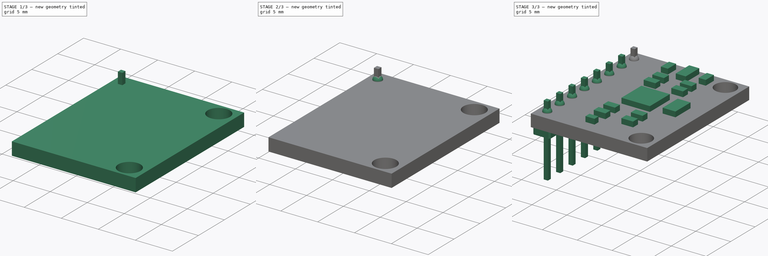
[diagram: build sequence overview — one tinted view per stage of 3, left to right]
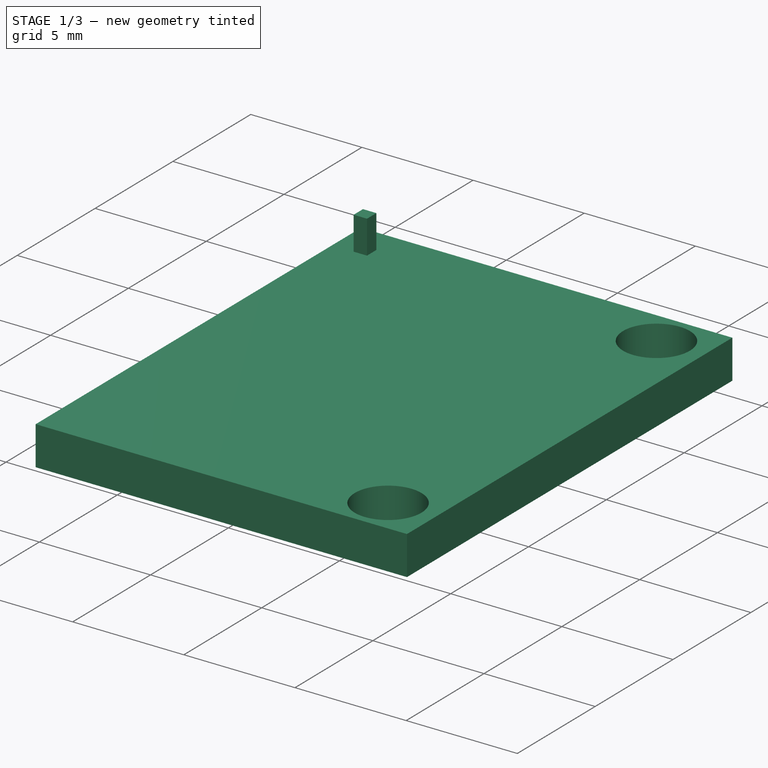
[diagram: stage 1 of 3 — iso view after this stage's code; geometry added in this stage tinted green]
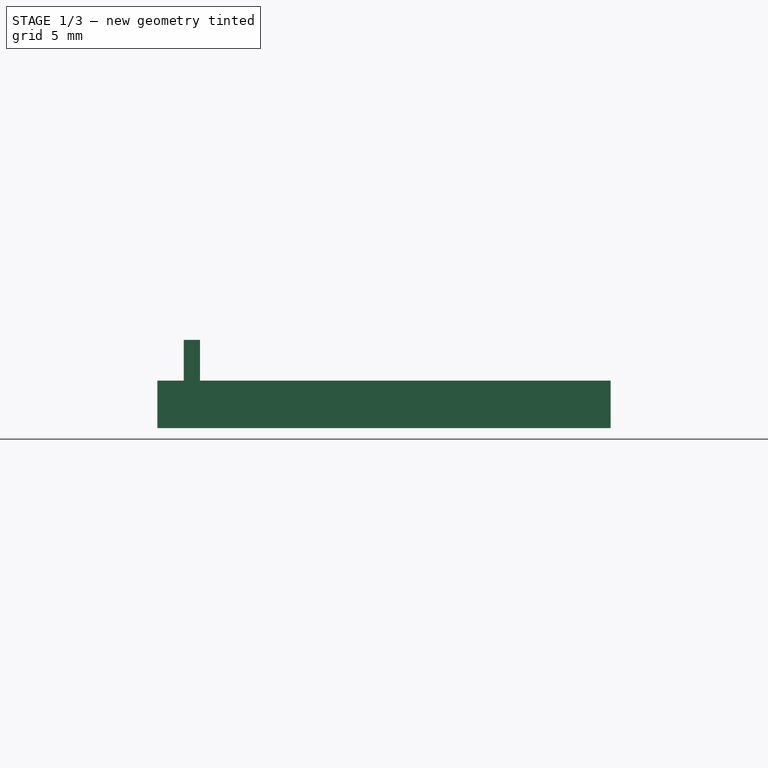
[diagram: stage 1 of 3 — front view after this stage's code; geometry added in this stage tinted green]
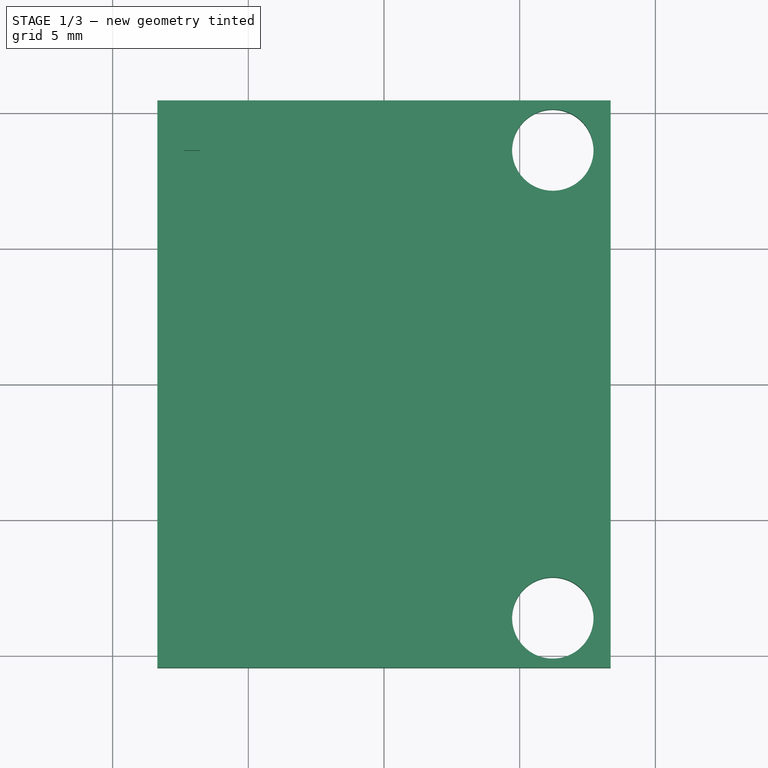
[diagram: stage 1 of 3 — top view after this stage's code; geometry added in this stage tinted green]
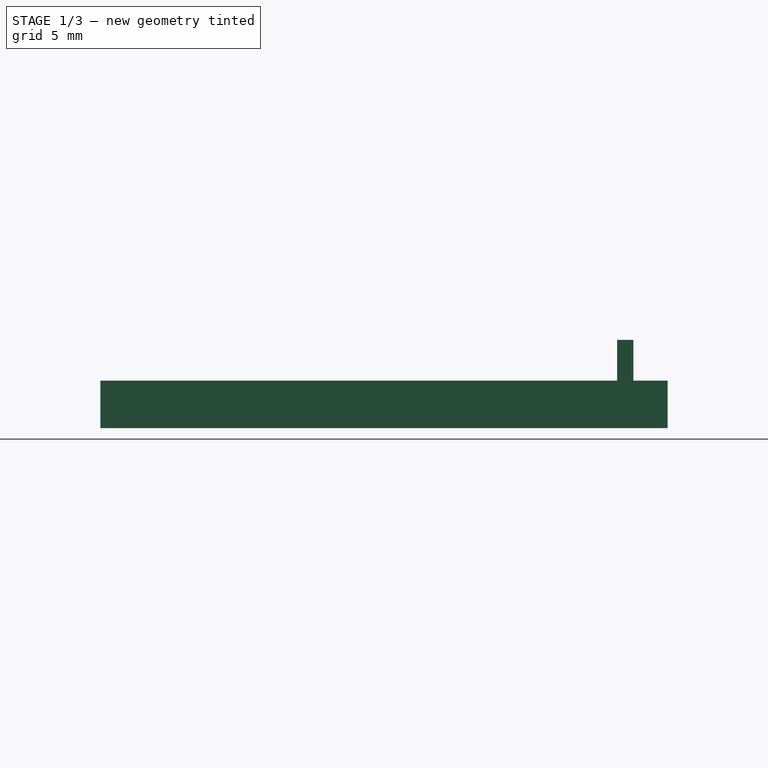
[diagram: stage 1 of 3 — right view after this stage's code; geometry added in this stage tinted green]
FCSTD DOCUMENT  (FreeCAD 1.0R39109 (Git))
Label: accel_gy_mpu
License: All rights reserved
LicenseURL: http://en.wikipedia.org/wiki/All_rights_reserved
objects: Sketcher::SketchObject×8, PartDesign::Pad×5, Image::ImagePlane×1, PartDesign::Pocket×1, PartDesign::Plane×1, PartDesign::Revolution×1, PartDesign::LinearPattern×1, PartDesign::Body×1
note: 41 computed .brp shape members not serialized (recipe doc carries the construction recipe); baked Part::Feature solids carry a one-line shape summary decoded from their .brp

FEATURE [Sketcher::SketchObject] Sketch
  ArcFitTolerance = 1e-06
  AttachmentSupport = -> [XY_Plane]
  FullyConstrained = true
  MakeInternals = false
  MapMode = 5
  sketch-geometry (5):
    g0: LineSegment StartX=-8.35 StartY=10.45 StartZ=0 EndX=-8.35 EndY=-10.45 EndZ=0
    g1: LineSegment StartX=-8.35 StartY=-10.45 StartZ=0 EndX=8.35 EndY=-10.45 EndZ=0
    g2: LineSegment StartX=8.35 StartY=-10.45 StartZ=0 EndX=8.35 EndY=10.45 EndZ=0
    g3: LineSegment StartX=8.35 StartY=10.45 StartZ=0 EndX=-8.35 EndY=10.45 EndZ=0
    g4: GeomPoint [constr] X=0 Y=0 Z=0
  constraints (12):
    c: Coincident(g0,g1)
    c: Coincident(g1,g2)
    c: Coincident(g2,g3)
    c: Coincident(g3,g0)
    c: Vertical(g0)
    c: Vertical(g2)
    c: Horizontal(g1)
    c: Horizontal(g3)
    c: Symmetric(g2,g0,g4)
    c: Coincident(g4,g-1)
    c: DistanceX(g3,g3) = 16.7
    c: DistanceY(g2,g2) = 20.9
FEATURE [PartDesign::Pad] Pad  label="PCBPad"
  Direction = (0,0,1)
  Length = 1.75
  Length2 = 10
  Profile = -> Sketch
  ReferenceAxis = -> Sketch [N_Axis]
  Refine = true
  Suppressed = false
  Type = 0
FEATURE [Image::ImagePlane] mpu6050  label="DrawingReference"
  XSize = 24.9984
  YSize = 24.9984
  expr: XSize = 59.52 * 0.42 mm
  expr: YSize = 59.52 * 0.42 mm
FEATURE [Sketcher::SketchObject] Sketch001
  ArcFitTolerance = 1e-06
  AttachmentSupport = -> [Pad]
  FullyConstrained = true
  MakeInternals = false
  MapMode = 5
  Placement = pos=(0,0,1.75) rot=(0,0,1;0rad)
  sketch-geometry (2):
    g0: Circle CenterX=6.22 CenterY=8.62 CenterZ=0 NormalX=0 NormalY=0 NormalZ=1 AngleXU=0 Radius=1.5
    g1: Circle CenterX=6.22 CenterY=-8.62 CenterZ=0 NormalX=0 NormalY=0 NormalZ=1 AngleXU=0 Radius=1.5
  constraints (5):
    c: Equal(g1,g0)
    c: Radius(g1) = 1.5
    c: Symmetric(g1,g0,g-1)
    c: DistanceY(g1) = -8.62
    c: DistanceX(g-1,g1) = 6.22
FEATURE [PartDesign::Pocket] Pocket  label="ScrewPocket"
  BaseFeature = -> Pad
  Direction = (0,0,-1)
  Length = 5
  Length2 = 5
  Profile = -> Sketch001
  ReferenceAxis = -> Sketch001 [N_Axis]
  Refine = true
  Suppressed = false
  Type = 2
FEATURE [Sketcher::SketchObject] Sketch002
  ArcFitTolerance = 1e-06
  AttachmentSupport = -> [Pocket]
  ExternalGeometry = -> [Pocket]
  FullyConstrained = true
  MakeInternals = false
  MapMode = 5
  Placement = pos=(0,0,1.75) rot=(0,0,1;0rad)
  sketch-geometry (19):
    g0: LineSegment [constr] StartX=-8.35 StartY=10.16 StartZ=0 EndX=-8.35 EndY=7.62 EndZ=0
    g1: LineSegment [constr] StartX=-8.35 StartY=7.62 StartZ=0 EndX=-5.81 EndY=7.62 EndZ=0
    g2: LineSegment [constr] StartX=-5.81 StartY=7.62 StartZ=0 EndX=-5.81 EndY=10.16 EndZ=0
    g3: LineSegment [constr] StartX=-5.81 StartY=10.16 StartZ=0 EndX=-8.35 EndY=10.16 EndZ=0
    g4: GeomPoint [constr] X=-7.08 Y=8.89 Z=0
    g5: LineSegment [constr] StartX=-5.81 StartY=7.62 StartZ=0 EndX=-5.81 EndY=5.08 EndZ=0
    g6: LineSegment [constr] StartX=-5.81 StartY=5.08 StartZ=0 EndX=-5.81 EndY=2.54 EndZ=0
    g7: LineSegment [constr] StartX=-5.81 StartY=2.54 StartZ=0 EndX=-5.81 EndY=0 EndZ=0
    g8: LineSegment [constr] StartX=-5.81 StartY=0 StartZ=0 EndX=-5.81 EndY=-2.54 EndZ=0
    g9: LineSegment [constr] StartX=-5.81 StartY=-2.54 StartZ=0 EndX=-5.81 EndY=-5.08 EndZ=0
    g10: LineSegment [constr] StartX=-5.81 StartY=-5.08 StartZ=0 EndX=-5.81 EndY=-7.62 EndZ=0
    g11: LineSegment [constr] StartX=-5.81 StartY=-7.62 StartZ=0 EndX=-5.81 EndY=-10.16 EndZ=0
    g12: LineSegment [constr] StartX=-5.81 StartY=10.16 StartZ=0 EndX=-5.81 EndY=10.45 EndZ=0
    g13: LineSegment [constr] StartX=-5.81 StartY=-10.16 StartZ=0 EndX=-5.81 EndY=-10.45 EndZ=0
    g14: LineSegment StartX=-7.38 StartY=9.19 StartZ=0 EndX=-7.38 EndY=8.59 EndZ=0
    g15: LineSegment StartX=-7.38 StartY=8.59 StartZ=0 EndX=-6.78 EndY=8.59 EndZ=0
    g16: LineSegment StartX=-6.78 StartY=8.59 StartZ=0 EndX=-6.78 EndY=9.19 EndZ=0
    g17: LineSegment StartX=-6.78 StartY=9.19 StartZ=0 EndX=-7.38 EndY=9.19 EndZ=0
    g18: GeomPoint [constr] X=-7.08 Y=8.89 Z=0
  constraints (52):
    c: Coincident(g0,g1)
    c: Coincident(g1,g2)
    c: Coincident(g2,g3)
    c: Coincident(g3,g0)
    c: Vertical(g0)
    c: Vertical(g2)
    c: Horizontal(g1)
    c: Horizontal(g3)
    c: Symmetric(g2,g0,g4)
    c: Equal(g2,g3)
    c: PointOnObject(g0,g-3)
    c: Coincident(g5,g1)
    c: Vertical(g5)
    c: Vertical(g6)
    c: Coincident(g6,g7)
    c: Coincident(g7,g8)
    c: Vertical(g8)
    c: Coincident(g8,g9)
    c: Coincident(g9,g10)
    c: Coincident(g10,g11)
    c: Vertical(g11)
    c: Vertical(g10)
    c: Vertical(g9)
    c: Vertical(g7)
    c: Equal(g6,g5)
    c: Equal(g7,g6)
    c: Coincident(g6,g5)
    c: Equal(g7,g8)
    c: Equal(g9,g10)
    c: Equal(g11,g10)
    c: Equal(g5,g2)
    c: Equal(g8,g9)
    c: Coincident(g12,g2)
    c: PointOnObject(g12,g-4)
    c: Coincident(g13,g11)
    c: Horizontal(g13,g-3)
    c: Vertical(g13)
    c: Equal(g13,g12)
    c: Vertical(g12)
    c: Coincident(g14,g15)
    c: Coincident(g15,g16)
    c: Coincident(g16,g17)
    c: Coincident(g17,g14)
    c: Vertical(g14)
    c: Vertical(g16)
    c: Horizontal(g15)
    c: Horizontal(g17)
    c: Symmetric(g16,g14,g18)
    c: Coincident(g18,g4)
    c: Equal(g16,g17)
    c: DistanceY(g16,g16) = 0.6
    c: DistanceY(g2,g2) = 2.54
FEATURE [PartDesign::Pad] Pad001  label="ExcedentConnectorPad"
  BaseFeature = -> Pocket
  Direction = (0,0,1)
  Length = 1.5
  Length2 = 10
  Profile = -> Sketch002
  ReferenceAxis = -> Sketch002 [N_Axis]
  Refine = true
  Suppressed = false
  Type = 0
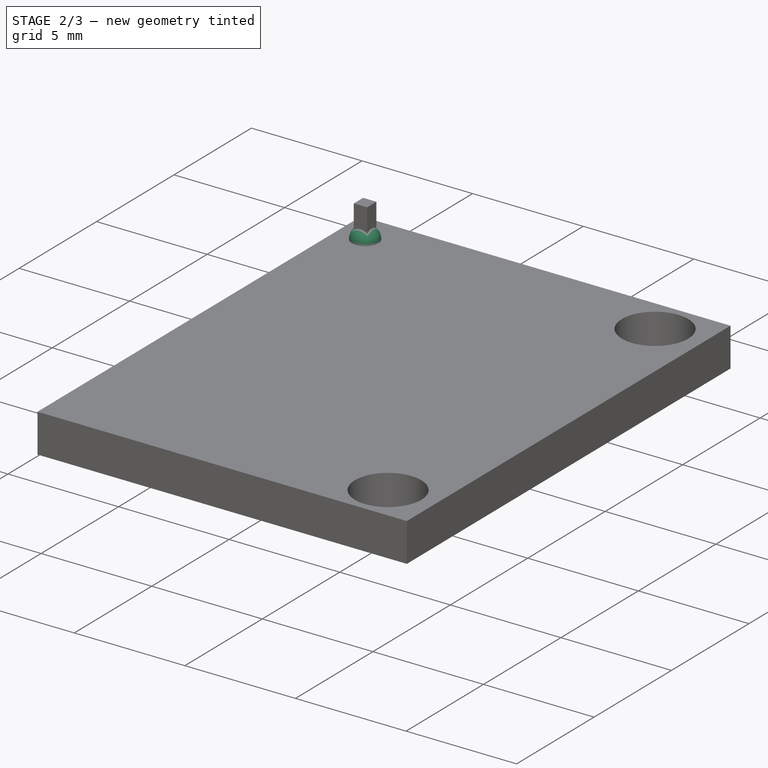
[diagram: stage 2 of 3 — iso view after this stage's code; geometry added in this stage tinted green]
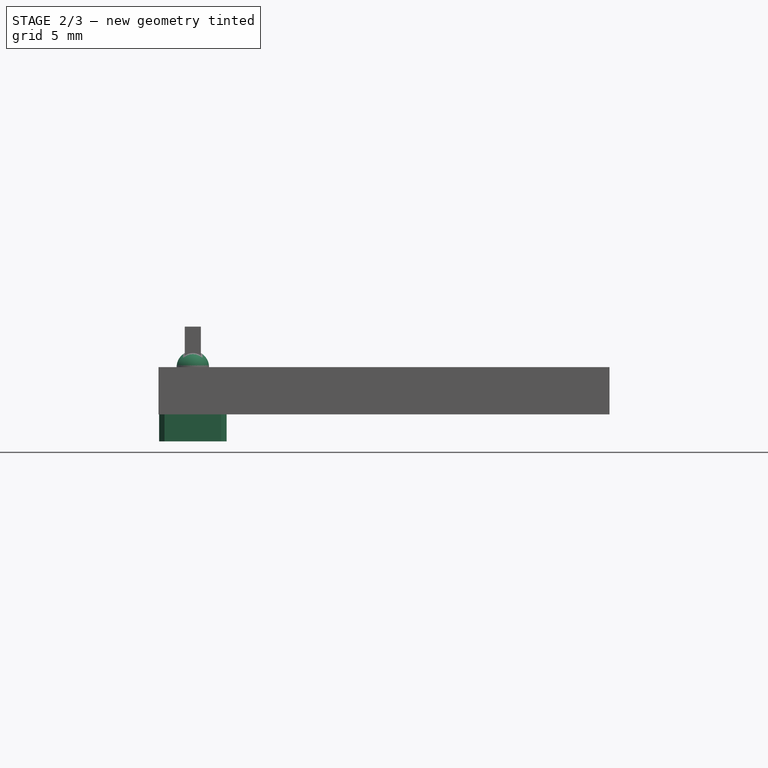
[diagram: stage 2 of 3 — front view after this stage's code; geometry added in this stage tinted green]
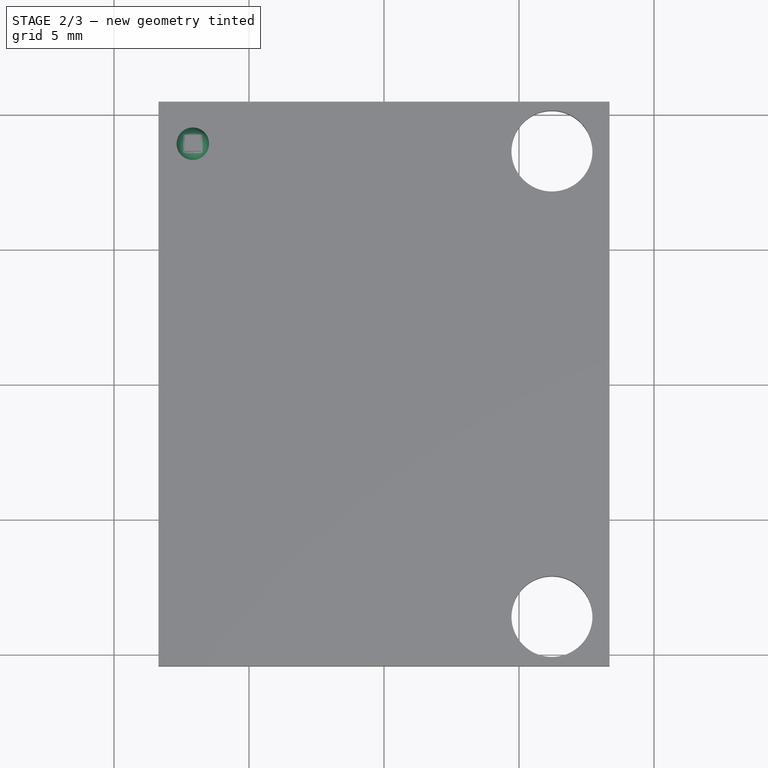
[diagram: stage 2 of 3 — top view after this stage's code; geometry added in this stage tinted green]
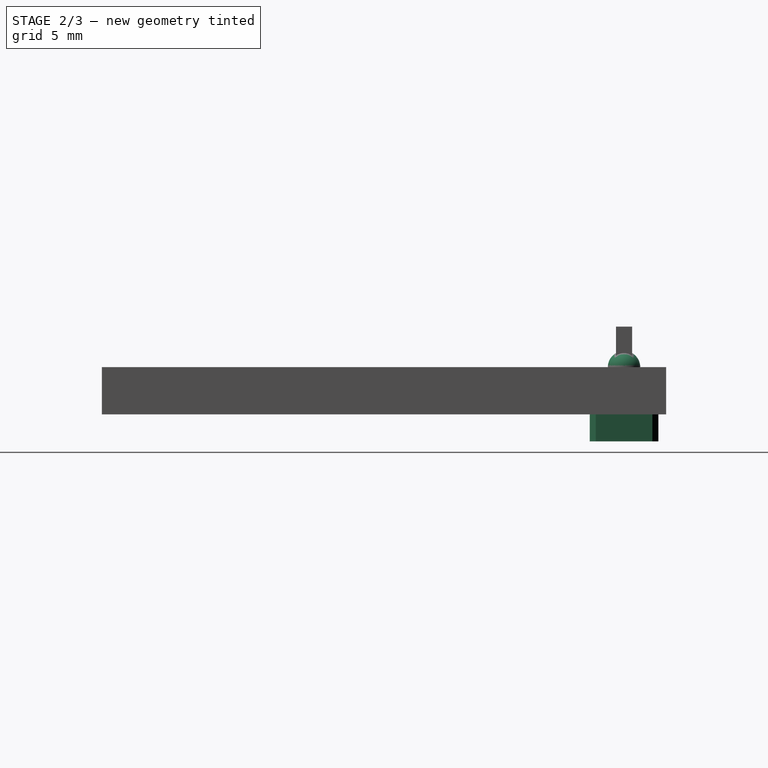
[diagram: stage 2 of 3 — right view after this stage's code; geometry added in this stage tinted green]
FEATURE [PartDesign::Plane] DatumPlane  label="SolderingReference"
  AttachmentOffset = pos=(0,0,-0.3) rot=(0,0,1;0rad)
  AttachmentSupport = -> [Pad001]
  Length = 60
  MapMode = 5
  Placement = pos=(0,8.89,-1e-16) rot=(1,0,0;1.5708rad)
  ResizeMode = 0
  Width = 60
FEATURE [Sketcher::SketchObject] Sketch003
  ArcFitTolerance = 1e-06
  AttachmentSupport = -> [DatumPlane]
  ExternalGeometry = -> [Pad001]
  FullyConstrained = true
  MakeInternals = false
  MapMode = 5
  Placement = pos=(0,8.89,-1e-16) rot=(1,0,0;1.5708rad)
  sketch-geometry (5):
    g0: GeomPoint X=-7.08 Y=3.25 Z=0
    g1: LineSegment [constr] StartX=-7.08 StartY=3.25 StartZ=0 EndX=-7.08 EndY=1.75 EndZ=0
    g2: ArcOfCircle CenterX=-7.08 CenterY=1.75 CenterZ=0 NormalX=0 NormalY=0 NormalZ=1 AngleXU=0 Radius=0.6 StartAngle=2e-16 EndAngle=1.5708
    g3: LineSegment StartX=-7.08 StartY=2.35 StartZ=0 EndX=-7.08 EndY=1.75 EndZ=0
    g4: LineSegment StartX=-6.48 StartY=1.75 StartZ=0 EndX=-7.08 EndY=1.75 EndZ=0
  constraints (12):
    c: Symmetric(g-3,g-3,g0)
    c: Coincident(g1,g0)
    c: Vertical(g1)
    c: Horizontal(g1,g-4)
    c: Coincident(g2,g1)
    c: PointOnObject(g2,g1)
    c: Coincident(g3,g2)
    c: Coincident(g3,g1)
    c: Coincident(g4,g2)
    c: Coincident(g4,g1)
    c: Horizontal(g4)
    c: DistanceX(g4,g4) = 0.6
FEATURE [PartDesign::Revolution] Revolution  label="SolderingRevolution"
  Angle = 360
  Angle2 = 60
  Axis = (0,-3e-16,-1.5)
  Base = (-7.08,8.89,3.25)
  BaseFeature = -> Pad001
  Profile = -> Sketch003
  ReferenceAxis = -> Sketch003 [Axis]
  Refine = true
  Suppressed = false
  Type = 0
FEATURE [Sketcher::SketchObject] Sketch004
  ArcFitTolerance = 1e-06
  AttachmentSupport = -> [Revolution]
  ExternalGeometry = -> [Revolution]
  FullyConstrained = true
  MakeInternals = false
  MapMode = 5
  Placement = pos=(0,0,0) rot=(1,0,0;3.14159rad)
  sketch-geometry (14):
    g0: LineSegment StartX=-8.33 StartY=-7.84 StartZ=0 EndX=-8.33 EndY=-9.94 EndZ=0
    g1: LineSegment StartX=-8.33 StartY=-9.94 StartZ=0 EndX=-8.13 EndY=-10.16 EndZ=0
    g2: LineSegment StartX=-8.13 StartY=-10.16 StartZ=0 EndX=-6.03 EndY=-10.16 EndZ=0
    g3: LineSegment StartX=-6.03 StartY=-10.16 StartZ=0 EndX=-5.83 EndY=-9.94 EndZ=0
    g4: LineSegment StartX=-5.83 StartY=-9.94 StartZ=0 EndX=-5.83 EndY=-7.84 EndZ=0
    g5: LineSegment StartX=-5.83 StartY=-7.84 StartZ=0 EndX=-6.03 EndY=-7.62 EndZ=0
    g6: LineSegment StartX=-6.03 StartY=-7.62 StartZ=0 EndX=-8.13 EndY=-7.62 EndZ=0
    g7: LineSegment StartX=-8.13 StartY=-7.62 StartZ=0 EndX=-8.33 EndY=-7.84 EndZ=0
    g8: GeomPoint X=-5.83 Y=-8.89 Z=0
    g9: GeomPoint X=-7.08 Y=-7.62 Z=0
    g10: GeomPoint X=-7.08 Y=-10.16 Z=0
    g11: GeomPoint X=-8.33 Y=-8.89 Z=0
    g12: GeomPoint X=-7.08 Y=-8.59 Z=0
    g13: GeomPoint X=-6.78 Y=-8.89 Z=0
  constraints (30):
    c: Vertical(g0)
    c: Coincident(g0,g1)
    c: Coincident(g1,g2)
    c: Horizontal(g2)
    c: Coincident(g2,g3)
    c: Coincident(g3,g4)
    c: Coincident(g4,g5)
    c: Coincident(g5,g6)
    c: Horizontal(g6)
    c: Coincident(g6,g7)
    c: Coincident(g7,g0)
    c: Symmetric(g4,g4,g8)
    c: Symmetric(g6,g6,g9)
    c: Vertical(g4)
    c: Symmetric(g2,g2,g10)
    c: Symmetric(g0,g0,g11)
    c: Horizontal(g11,g8)
    c: Vertical(g10,g9)
    c: Parallel(g5,g1)
    c: Parallel(g7,g3)
    c: Equal(g1,g3)
    c: Equal(g3,g5)
    c: Symmetric(g-3,g-3,g12)
    c: Symmetric(g-4,g-4,g13)
    c: Horizontal(g8,g13)
    c: Vertical(g9,g12)
    c: DistanceY(g2,g5) = 2.54
    c: DistanceX(g0,g4) = 2.5
    c: Equal(g4,g6)
    c: DistanceX(g5,g4) = 0.2
FEATURE [PartDesign::Pad] Pad002  label="ConnectorBasePad"
  BaseFeature = -> Revolution
  Direction = (0,0,-1)
  Length = 1
  Length2 = 10
  Profile = -> Sketch004
  ReferenceAxis = -> Sketch004 [N_Axis]
  Refine = true
  Suppressed = false
  Type = 0
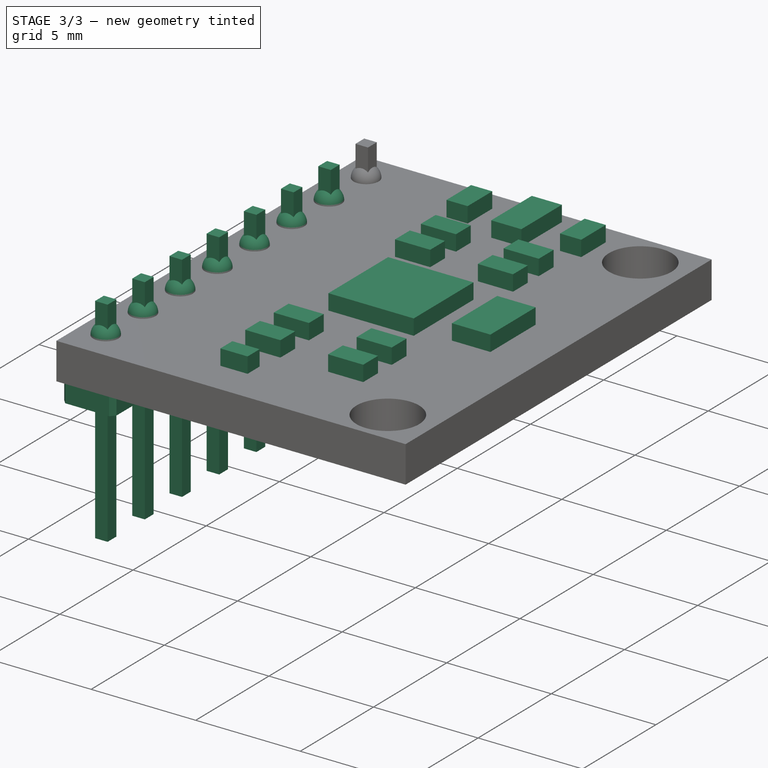
[diagram: stage 3 of 3 — iso view after this stage's code; geometry added in this stage tinted green]
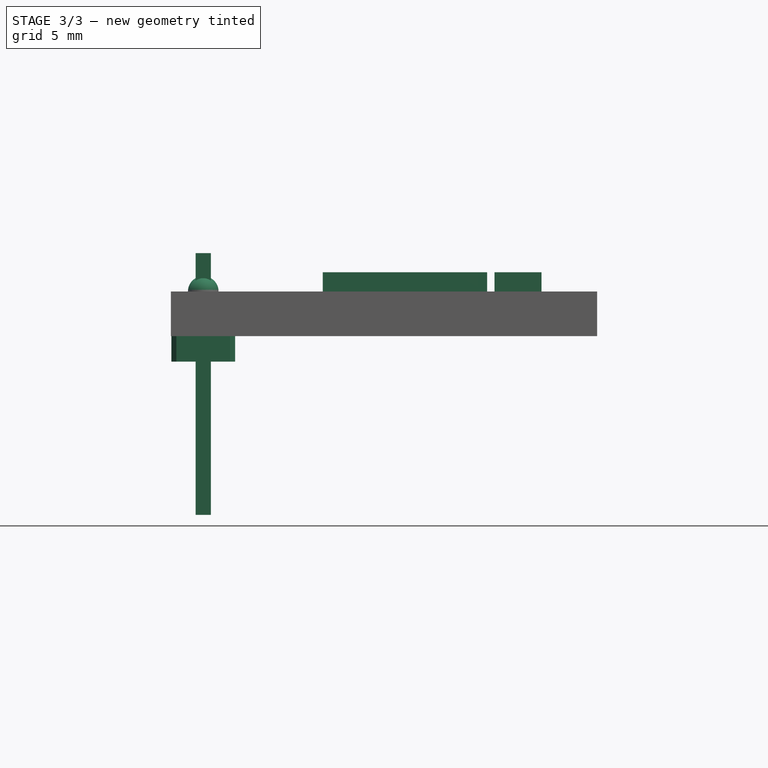
[diagram: stage 3 of 3 — front view after this stage's code; geometry added in this stage tinted green]
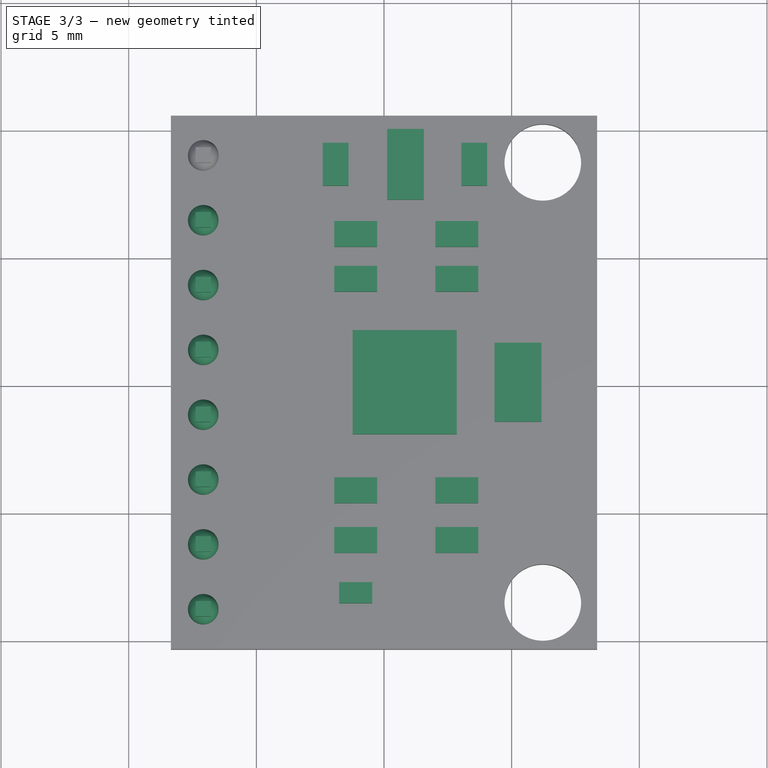
[diagram: stage 3 of 3 — top view after this stage's code; geometry added in this stage tinted green]
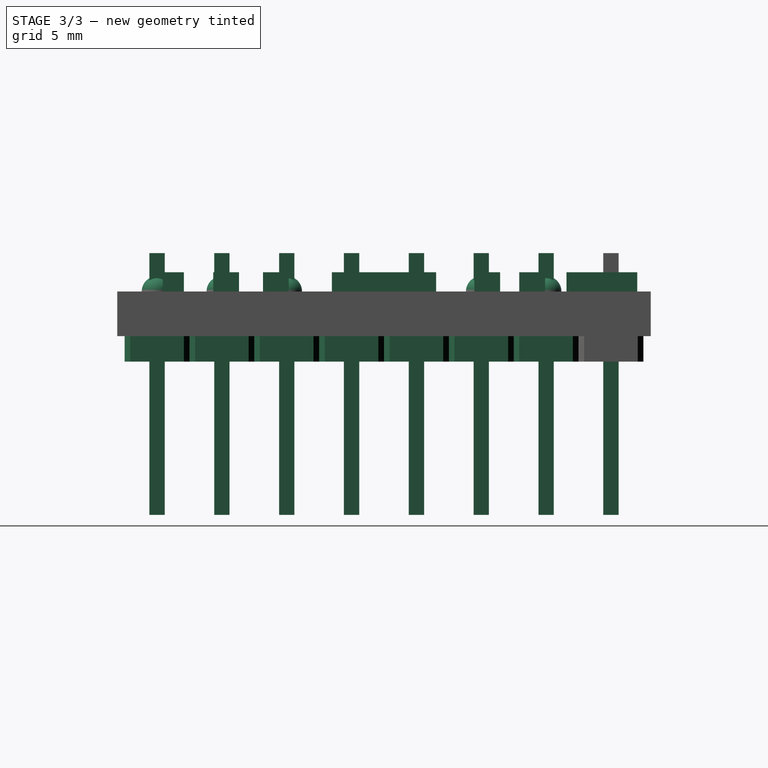
[diagram: stage 3 of 3 — right view after this stage's code; geometry added in this stage tinted green]
FEATURE [Sketcher::SketchObject] Sketch005
  ArcFitTolerance = 1e-06
  AttachmentSupport = -> [Pad002]
  ExternalGeometry = -> [Pad002]
  FullyConstrained = true
  MakeInternals = false
  MapMode = 5
  Placement = pos=(0,0,-1) rot=(1,0,0;3.14159rad)
  sketch-geometry (7):
    g0: GeomPoint X=-7.08 Y=-7.62 Z=0
    g1: GeomPoint X=-8.33 Y=-8.89 Z=0
    g2: LineSegment StartX=-7.38 StartY=-8.59 StartZ=0 EndX=-7.38 EndY=-9.19 EndZ=0
    g3: LineSegment StartX=-7.38 StartY=-9.19 StartZ=0 EndX=-6.78 EndY=-9.19 EndZ=0
    g4: LineSegment StartX=-6.78 StartY=-9.19 StartZ=0 EndX=-6.78 EndY=-8.59 EndZ=0
    g5: LineSegment StartX=-6.78 StartY=-8.59 StartZ=0 EndX=-7.38 EndY=-8.59 EndZ=0
    g6: GeomPoint [constr] X=-7.08 Y=-8.89 Z=0
  constraints (15):
    c: Symmetric(g-4,g-4,g0)
    c: Symmetric(g-3,g-3,g1)
    c: Coincident(g2,g3)
    c: Coincident(g3,g4)
    c: Coincident(g4,g5)
    c: Coincident(g5,g2)
    c: Vertical(g2)
    c: Vertical(g4)
    c: Horizontal(g3)
    c: Horizontal(g5)
    c: Symmetric(g4,g2,g6)
    c: Equal(g4,g5)
    c: DistanceY(g4,g4) = 0.6
    c: Horizontal(g6,g1)
    c: Vertical(g6,g0)
FEATURE [PartDesign::Pad] Pad003  label="ConnectorPad"
  BaseFeature = -> Pad002
  Direction = (0,0,-1)
  Length = 6
  Length2 = 10
  Profile = -> Sketch005
  ReferenceAxis = -> Sketch005 [N_Axis]
  Refine = true
  Suppressed = false
  Type = 0
FEATURE [PartDesign::LinearPattern] LinearPattern  label="ConnectorsPattern"
  BaseFeature = -> Pad003
  Direction = -> Sketch005 [V_Axis]
  Length = 17.78
  Mode = 1
  Occurrences = 8
  Offset = 2.54
  Originals = -> [Pad003,Pad002,Revolution,Pad001]
  Refine = true
  Suppressed = false
  TransformMode = 0
FEATURE [Sketcher::SketchObject] Sketch006
  ArcFitTolerance = 1e-06
  AttachmentSupport = -> [LinearPattern]
  FullyConstrained = true
  MakeInternals = false
  MapMode = 5
  Placement = pos=(0,0,1.75) rot=(0,0,1;0rad)
  sketch-geometry (62):
    g0: LineSegment StartX=-1.23 StartY=2.04 StartZ=0 EndX=-1.23 EndY=-2.04 EndZ=0
    g1: LineSegment StartX=-1.23 StartY=-2.04 StartZ=0 EndX=2.85 EndY=-2.04 EndZ=0
    g2: LineSegment StartX=2.85 StartY=-2.04 StartZ=0 EndX=2.85 EndY=2.04 EndZ=0
    g3: LineSegment StartX=2.85 StartY=2.04 StartZ=0 EndX=-1.23 EndY=2.04 EndZ=0
    g4: LineSegment StartX=4.33 StartY=1.545 StartZ=0 EndX=4.33 EndY=-1.545 EndZ=0
    g5: LineSegment StartX=4.33 StartY=-1.545 StartZ=0 EndX=6.17 EndY=-1.545 EndZ=0
    g6: LineSegment StartX=6.17 StartY=-1.545 StartZ=0 EndX=6.17 EndY=1.545 EndZ=0
    g7: LineSegment StartX=6.17 StartY=1.545 StartZ=0 EndX=4.33 EndY=1.545 EndZ=0
    g8: LineSegment StartX=-1.95 StartY=-3.73 StartZ=0 EndX=-1.95 EndY=-4.74 EndZ=0
    g9: LineSegment StartX=-1.95 StartY=-4.74 StartZ=0 EndX=-0.27 EndY=-4.74 EndZ=0
    g10: LineSegment StartX=-0.27 StartY=-4.74 StartZ=0 EndX=-0.27 EndY=-3.73 EndZ=0
    g11: LineSegment StartX=-0.27 StartY=-3.73 StartZ=0 EndX=-1.95 EndY=-3.73 EndZ=0
    g12: LineSegment StartX=2.01 StartY=-3.73 StartZ=0 EndX=2.01 EndY=-4.74 EndZ=0
    g13: LineSegment StartX=2.01 StartY=-4.74 StartZ=0 EndX=3.69 EndY=-4.74 EndZ=0
    g14: LineSegment StartX=3.69 StartY=-4.74 StartZ=0 EndX=3.69 EndY=-3.73 EndZ=0
    g15: LineSegment StartX=3.69 StartY=-3.73 StartZ=0 EndX=2.01 EndY=-3.73 EndZ=0
    g16: LineSegment StartX=-1.95 StartY=-5.68 StartZ=0 EndX=-1.95 EndY=-6.69 EndZ=0
    g17: LineSegment StartX=-1.95 StartY=-6.69 StartZ=0 EndX=-0.27 EndY=-6.69 EndZ=0
    g18: LineSegment StartX=-0.27 StartY=-6.69 StartZ=0 EndX=-0.27 EndY=-5.68 EndZ=0
    g19: LineSegment StartX=-0.27 StartY=-5.68 StartZ=0 EndX=-1.95 EndY=-5.68 EndZ=0
    g20: LineSegment StartX=2.01 StartY=-5.68 StartZ=0 EndX=2.01 EndY=-6.69 EndZ=0
    g21: LineSegment StartX=2.01 StartY=-6.69 StartZ=0 EndX=3.69 EndY=-6.69 EndZ=0
    g22: LineSegment StartX=3.69 StartY=-6.69 StartZ=0 EndX=3.69 EndY=-5.68 EndZ=0
    g23: LineSegment StartX=3.69 StartY=-5.68 StartZ=0 EndX=2.01 EndY=-5.68 EndZ=0
    g24: LineSegment StartX=-1.76 StartY=-7.84 StartZ=0 EndX=-1.76 EndY=-8.66 EndZ=0
    g25: LineSegment StartX=-1.76 StartY=-8.66 StartZ=0 EndX=-0.46 EndY=-8.66 EndZ=0
    g26: LineSegment StartX=-0.46 StartY=-8.66 StartZ=0 EndX=-0.46 EndY=-7.84 EndZ=0
    g27: LineSegment StartX=-0.46 StartY=-7.84 StartZ=0 EndX=-1.76 EndY=-7.84 EndZ=0
    g28: LineSegment StartX=-1.95 StartY=6.31 StartZ=0 EndX=-1.95 EndY=5.3 EndZ=0
    g29: LineSegment StartX=-1.95 StartY=5.3 StartZ=0 EndX=-0.27 EndY=5.3 EndZ=0
    g30: LineSegment StartX=-0.27 StartY=5.3 StartZ=0 EndX=-0.27 EndY=6.31 EndZ=0
    g31: LineSegment StartX=-0.27 StartY=6.31 StartZ=0 EndX=-1.95 EndY=6.31 EndZ=0
    g32: LineSegment StartX=-1.95 StartY=4.55 StartZ=0 EndX=-1.95 EndY=3.54 EndZ=0
    g33: LineSegment StartX=-1.95 StartY=3.54 StartZ=0 EndX=-0.27 EndY=3.54 EndZ=0
    g34: LineSegment StartX=-0.27 StartY=3.54 StartZ=0 EndX=-0.27 EndY=4.55 EndZ=0
    g35: LineSegment StartX=-0.27 StartY=4.55 StartZ=0 EndX=-1.95 EndY=4.55 EndZ=0
    g36: LineSegment StartX=2.01 StartY=4.55 StartZ=0 EndX=2.01 EndY=3.54 EndZ=0
    g37: LineSegment StartX=2.01 StartY=3.54 StartZ=0 EndX=3.69 EndY=3.54 EndZ=0
    g38: LineSegment StartX=3.69 StartY=3.54 StartZ=0 EndX=3.69 EndY=4.55 EndZ=0
    g39: LineSegment StartX=3.69 StartY=4.55 StartZ=0 EndX=2.01 EndY=4.55 EndZ=0
    g40: LineSegment StartX=2.01 StartY=6.31 StartZ=0 EndX=2.01 EndY=5.3 EndZ=0
    g41: LineSegment StartX=2.01 StartY=5.3 StartZ=0 EndX=3.69 EndY=5.3 EndZ=0
    g42: LineSegment StartX=3.69 StartY=5.3 StartZ=0 EndX=3.69 EndY=6.31 EndZ=0
    g43: LineSegment StartX=3.69 StartY=6.31 StartZ=0 EndX=2.01 EndY=6.31 EndZ=0
    g44: LineSegment StartX=-2.4 StartY=9.375 StartZ=0 EndX=-2.4 EndY=7.695 EndZ=0
    g45: LineSegment StartX=-2.4 StartY=7.695 StartZ=0 EndX=-1.39 EndY=7.695 EndZ=0
    g46: LineSegment StartX=-1.39 StartY=7.695 StartZ=0 EndX=-1.39 EndY=9.375 EndZ=0
    g47: LineSegment StartX=-1.39 StartY=9.375 StartZ=0 EndX=-2.4 EndY=9.375 EndZ=0
    g48: LineSegment StartX=3.03 StartY=9.375 StartZ=0 EndX=3.03 EndY=7.695 EndZ=0
    g49: LineSegment StartX=3.03 StartY=7.695 StartZ=0 EndX=4.04 EndY=7.695 EndZ=0
    g50: LineSegment StartX=4.04 StartY=7.695 StartZ=0 EndX=4.04 EndY=9.375 EndZ=0
    g51: LineSegment StartX=4.04 StartY=9.375 StartZ=0 EndX=3.03 EndY=9.375 EndZ=0
    g52: LineSegment StartX=0.12 StartY=9.92 StartZ=0 EndX=0.12 EndY=7.15 EndZ=0
    g53: LineSegment StartX=0.12 StartY=7.15 StartZ=0 EndX=1.56 EndY=7.15 EndZ=0
    g54: LineSegment StartX=1.56 StartY=7.15 StartZ=0 EndX=1.56 EndY=9.92 EndZ=0
    g55: LineSegment StartX=1.56 StartY=9.92 StartZ=0 EndX=0.12 EndY=9.92 EndZ=0
    g56: GeomPoint X=0.12 Y=8.535 Z=0
    g57: GeomPoint X=-1.39 Y=8.535 Z=0
    g58: GeomPoint X=3.03 Y=8.535 Z=0
    g59: GeomPoint X=2.85 Y=3.54 Z=0
    g60: GeomPoint X=-1.11 Y=-7.84 Z=0
    g61: GeomPoint X=-1.11 Y=-6.69 Z=0
  constraints (172):
    c: Coincident(g0,g1)
    c: Coincident(g1,g2)
    c: Coincident(g2,g3)
    c: Coincident(g3,g0)
    c: Vertical(g0)
    c: Horizontal(g1)
    c: Horizontal(g3)
    c: Coincident(g4,g5)
    c: Coincident(g5,g6)
    c: Coincident(g6,g7)
    c: Coincident(g7,g4)
    c: Vertical(g6)
    c: Horizontal(g5)
    c: Horizontal(g7)
    c: Coincident(g8,g9)
    c: Coincident(g9,g10)
    c: Coincident(g10,g11)
    c: Coincident(g11,g8)
    c: Vertical(g8)
    c: Vertical(g10)
    c: Horizontal(g9)
    c: Horizontal(g11)
    c: Coincident(g12,g13)
    c: Coincident(g13,g14)
    c: Coincident(g14,g15)
    c: Coincident(g15,g12)
    c: Vertical(g12)
    c: Vertical(g14)
    c: Horizontal(g13)
    c: Horizontal(g15)
    c: Coincident(g16,g17)
    c: Coincident(g17,g18)
    c: Coincident(g18,g19)
    c: Coincident(g19,g16)
    c: Vertical(g16)
    c: Vertical(g18)
    c: Horizontal(g17)
    c: Horizontal(g19)
    c: Coincident(g20,g21)
    c: Coincident(g21,g22)
    c: Coincident(g22,g23)
    c: Coincident(g23,g20)
    c: Vertical(g20)
    c: Vertical(g22)
    c: Horizontal(g21)
    c: Horizontal(g23)
    c: Coincident(g24,g25)
    c: Coincident(g25,g26)
    c: Coincident(g26,g27)
    c: Coincident(g27,g24)
    c: Vertical(g24)
    c: Vertical(g26)
    c: Horizontal(g25)
    c: Horizontal(g27)
    c: Coincident(g28,g29)
    c: Coincident(g29,g30)
    c: Coincident(g30,g31)
    c: Coincident(g31,g28)
    c: Vertical(g28)
    c: Vertical(g30)
    c: Horizontal(g29)
    c: Horizontal(g31)
    c: Coincident(g32,g33)
    c: Coincident(g33,g34)
    c: Coincident(g34,g35)
    c: Coincident(g35,g32)
    c: Vertical(g32)
    c: Vertical(g34)
    c: Horizontal(g33)
    c: Horizontal(g35)
    c: Coincident(g36,g37)
    c: Coincident(g37,g38)
    c: Coincident(g38,g39)
    c: Coincident(g39,g36)
    c: Vertical(g36)
    c: Vertical(g38)
    c: Horizontal(g37)
    c: Horizontal(g39)
    c: Coincident(g40,g41)
    c: Coincident(g41,g42)
    c: Coincident(g42,g43)
    c: Coincident(g43,g40)
    c: Vertical(g40)
    c: Vertical(g42)
    c: Horizontal(g41)
    c: Horizontal(g43)
    c: Coincident(g44,g45)
    c: Coincident(g45,g46)
    c: Coincident(g46,g47)
    c: Coincident(g47,g44)
    c: Vertical(g44)
    c: Vertical(g46)
    c: Horizontal(g45)
    c: Horizontal(g47)
    c: Coincident(g48,g49)
    c: Coincident(g49,g50)
    c: Coincident(g50,g51)
    c: Coincident(g51,g48)
    c: Vertical(g48)
    c: Vertical(g50)
    c: Horizontal(g49)
    c: Horizontal(g51)
    c: Coincident(g52,g53)
    c: Coincident(g53,g54)
    c: Coincident(g54,g55)
    c: Coincident(g55,g52)
    c: Vertical(g52)
    c: Vertical(g54)
    c: Horizontal(g53)
    c: Horizontal(g55)
    c: Symmetric(g52,g52,g56)
    c: Symmetric(g46,g46,g57)
    c: Symmetric(g48,g48,g58)
    c: Horizontal(g58,g56)
    c: Horizontal(g56,g57)
    c: Equal(g48,g46)
    c: Equal(g46,g31)
    c: Equal(g31,g43)
    c: Equal(g43,g39)
    c: Equal(g39,g35)
    c: Equal(g35,g11)
    c: Equal(g11,g15)
    c: Equal(g15,g19)
    c: Equal(g19,g23)
    c: Equal(g22,g18)
    c: Equal(g18,g10)
    c: Equal(g10,g14)
    c: Equal(g14,g34)
    c: Equal(g34,g38)
    c: Equal(g38,g42)
    c: Equal(g42,g30)
    c: Equal(g30,g45)
    c: Equal(g45,g49)
    c: Horizontal(g30,g40)
    c: Horizontal(g34,g36)
    c: Vertical(g34,g29)
    c: Vertical(g36,g40)
    c: Symmetric(g37,g37,g59)
    c: Vertical(g2,g59)
    c: Symmetric(g1,g2,g-1)
    c: Symmetric(g4,g4,g-1)
    c: Vertical(g10,g33)
    c: Vertical(g18,g9)
    c: Vertical(g20,g12)
    c: Vertical(g12,g36)
    c: Horizontal(g10,g12)
    c: Horizontal(g20,g18)
    c: DistanceX(g1,g1) = 4.08
    c: Equal(g1,g2)
    c: DistanceX(g0,g-1) = 1.23
    c: DistanceX(g2,g4) = 1.48
    c: DistanceX(g7,g7) = 1.84
    c: DistanceY(g6,g6) = 3.09
    c: DistanceY(g54,g54) = 2.77
    c: DistanceX(g53,g53) = 1.44
    c: DistanceY(g36,g40) = 0.75
    c: DistanceY(g2,g36) = 1.5
    c: DistanceX(g33,g36) = 2.28
    c: DistanceY(g30,g52) = 0.84
    c: DistanceX(g45,g52) = 1.51
    c: DistanceX(g53,g48) = 1.47
    c: DistanceX(g33,g33) = 1.68
    c: DistanceY(g32,g32) = 1.01
    c: DistanceX(g30,g52) = 0.39
    c: DistanceY(g10,g0) = 1.69
    c: DistanceY(g16,g8) = 0.94
    c: DistanceY(g24,g16) = 1.15
    c: Symmetric(g27,g27,g60)
    c: Symmetric(g17,g17,g61)
    c: Vertical(g61,g60)
    c: DistanceY(g26,g26) = 0.82
    c: DistanceX(g27,g27) = 1.3
FEATURE [PartDesign::Pad] Pad004  label="ElectronicsPad"
  BaseFeature = -> LinearPattern
  Direction = (0,0,1)
  Length = 0.75
  Length2 = 10
  Profile = -> Sketch006
  ReferenceAxis = -> Sketch006 [N_Axis]
  Refine = true
  Suppressed = false
  Type = 0
FEATURE [Sketcher::SketchObject] Sketch007
  ArcFitTolerance = 1e-06
  AttachmentSupport = -> [Pad004]
  ExternalGeometry = -> [Pad004]
  FullyConstrained = true
  MakeInternals = false
  MapMode = 5
  Placement = pos=(0,0,1.75) rot=(0,0,1;0rad)
  sketch-geometry (5):
    g0: LineSegment [constr] StartX=-8.35 StartY=10.16 StartZ=0 EndX=-8.35 EndY=7.62 EndZ=0
    g1: LineSegment [constr] StartX=-8.35 StartY=7.62 StartZ=0 EndX=-5.81 EndY=7.62 EndZ=0
    g2: LineSegment [constr] StartX=-5.81 StartY=7.62 StartZ=0 EndX=-5.81 EndY=10.16 EndZ=0
    g3: LineSegment [constr] StartX=-5.81 StartY=10.16 StartZ=0 EndX=-8.35 EndY=10.16 EndZ=0
    g4: GeomPoint [constr] X=-7.08 Y=8.89 Z=0
  constraints (15):
    c: DistanceY(g-4,g-3) = 17.24
    c: Coincident(g0,g1)
    c: Coincident(g1,g2)
    c: Coincident(g2,g3)
    c: Coincident(g3,g0)
    c: Vertical(g0)
    c: Vertical(g2)
    c: Horizontal(g1)
    c: Horizontal(g3)
    c: Symmetric(g2,g0,g4)
    c: Equal(g2,g3)
    c: DistanceY(g2,g2) = 2.54
    c: Symmetric(g-6,g-5,g4)
    c: DistanceX(g-5,g-3) = 13
    c: Radius(g-4) = 1.5
FEATURE [PartDesign::Body] Body  label="accel_gy_mpu"
  AllowCompound = false
  Group = -> [Sketch,Pad,Sketch001,Pocket,Sketch002,Pad001,DatumPlane,Sketch003,Revolution,Sketch004,Pad002,Sketch005,Pad003,LinearPattern,Sketch006,Pad004,Sketch007]
  Origin = -> Origin
  Tip = -> Pad004
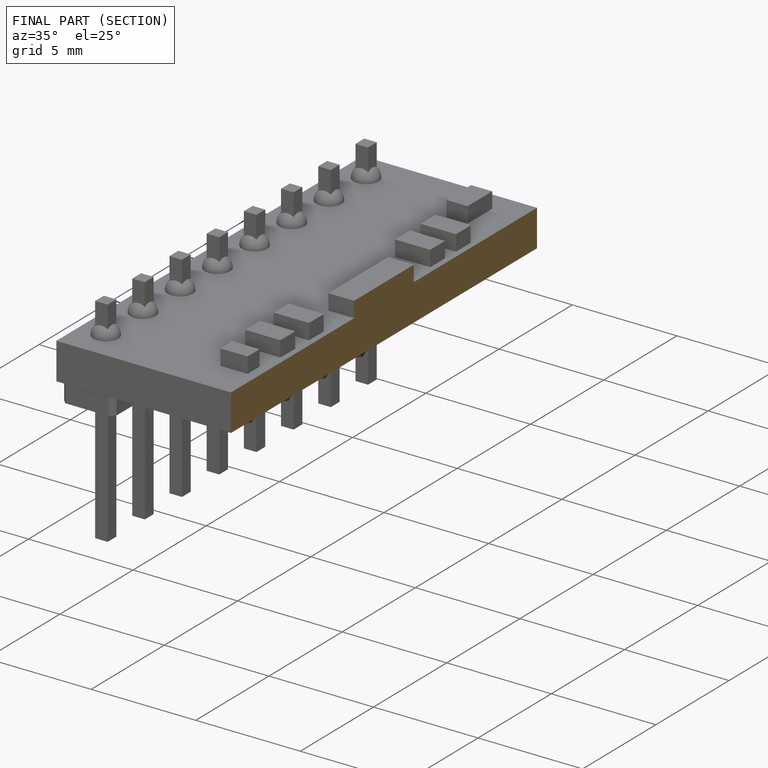
[diagram: finished part — half-section view (interior)]
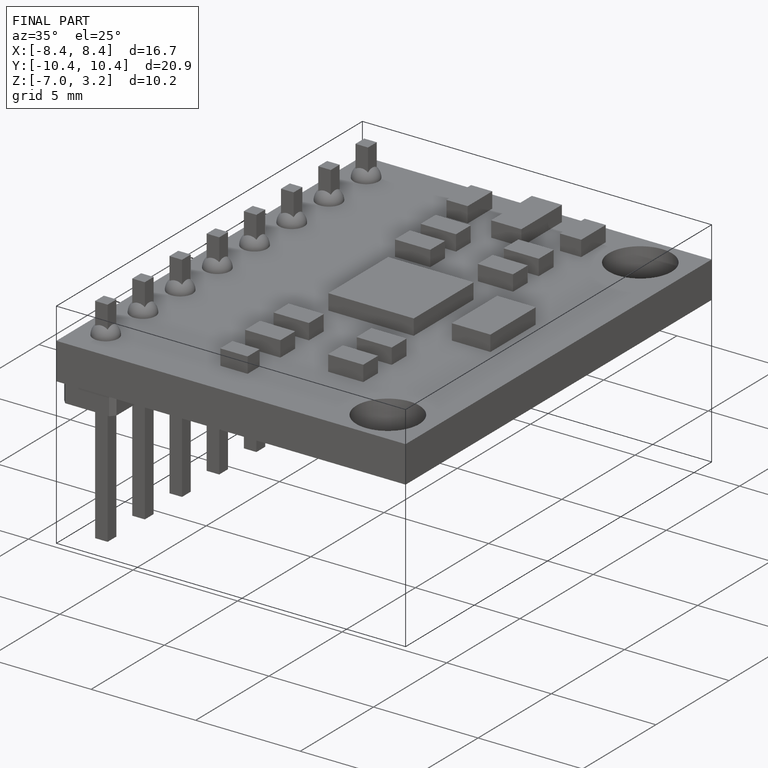
[diagram: finished part — iso view with bounding-box wireframe]
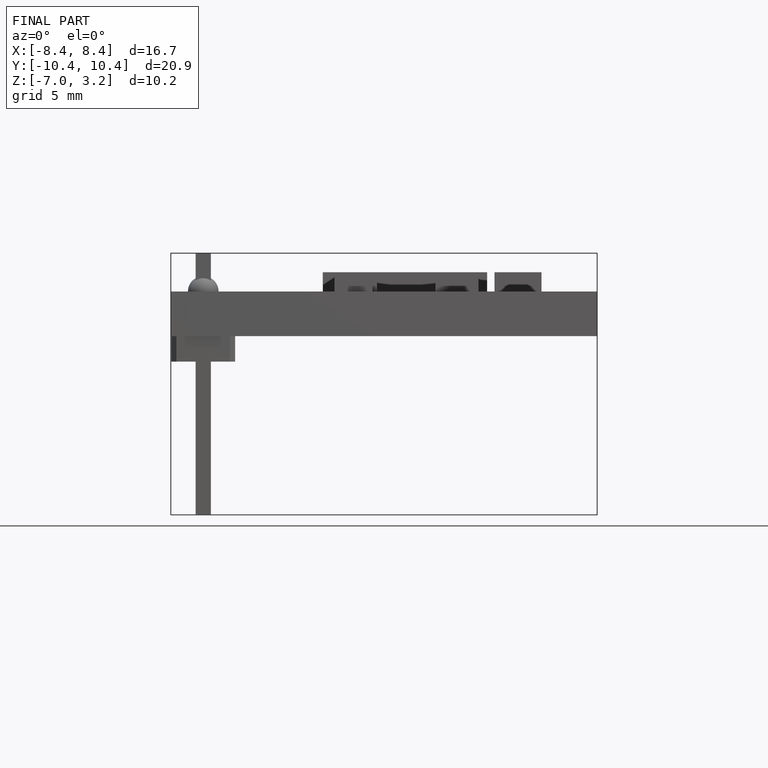
[diagram: finished part — front view with bounding-box wireframe]
